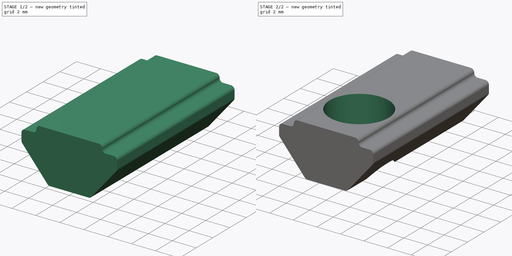
[diagram: build sequence overview — one tinted view per stage of 2, left to right]
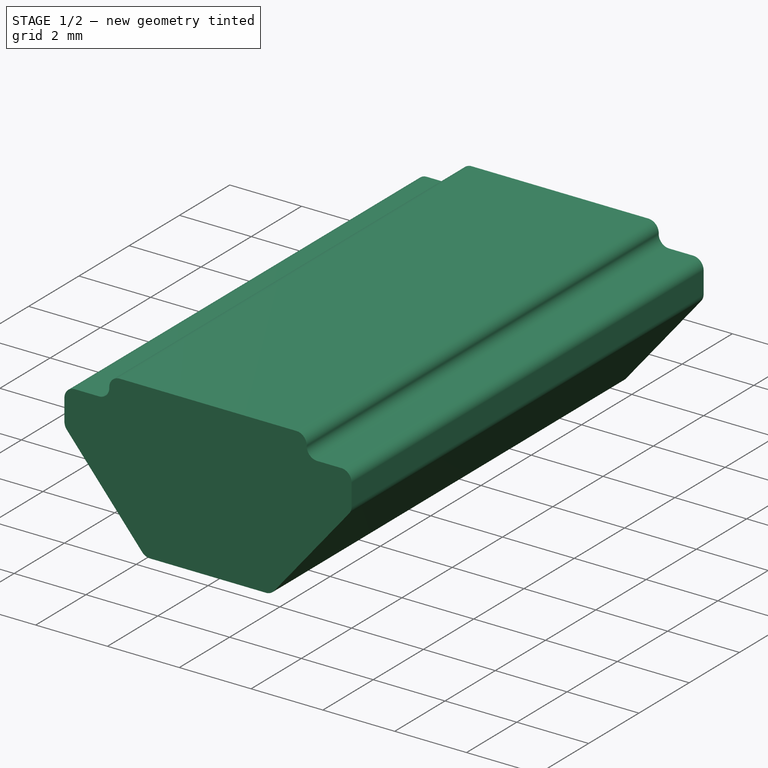
[diagram: stage 1 of 2 — iso view after this stage's code; geometry added in this stage tinted green]
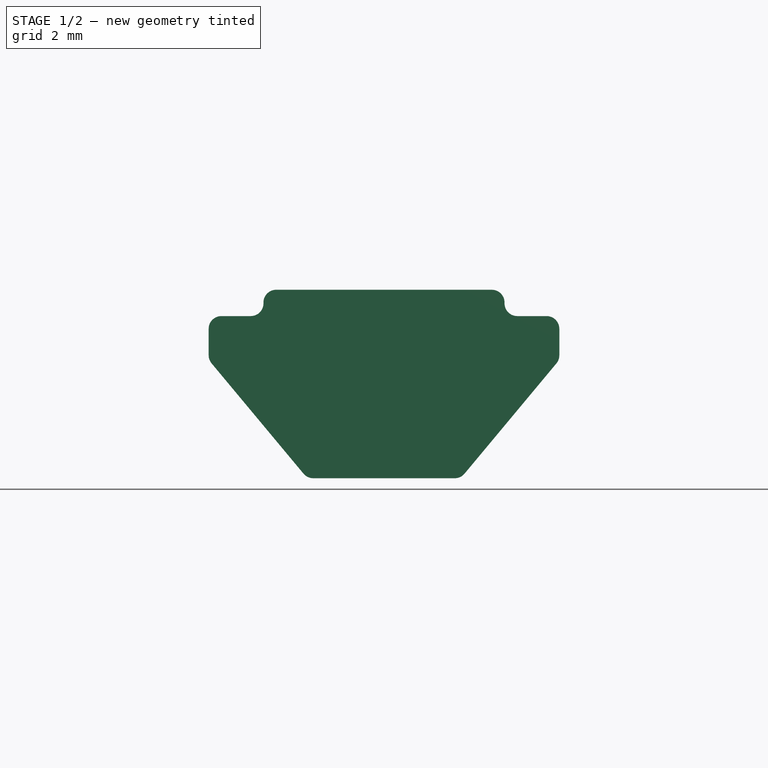
[diagram: stage 1 of 2 — front view after this stage's code; geometry added in this stage tinted green]
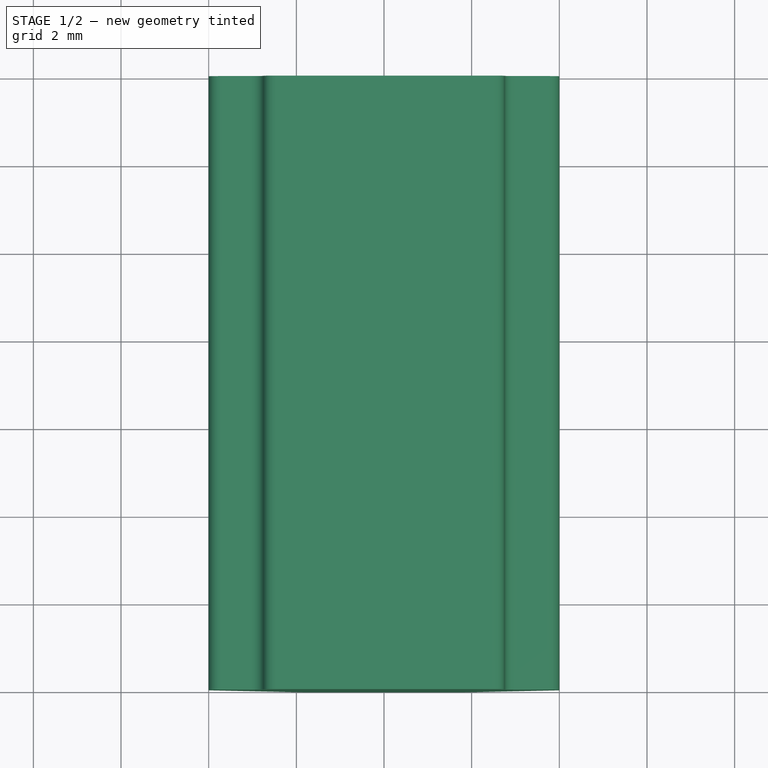
[diagram: stage 1 of 2 — top view after this stage's code; geometry added in this stage tinted green]
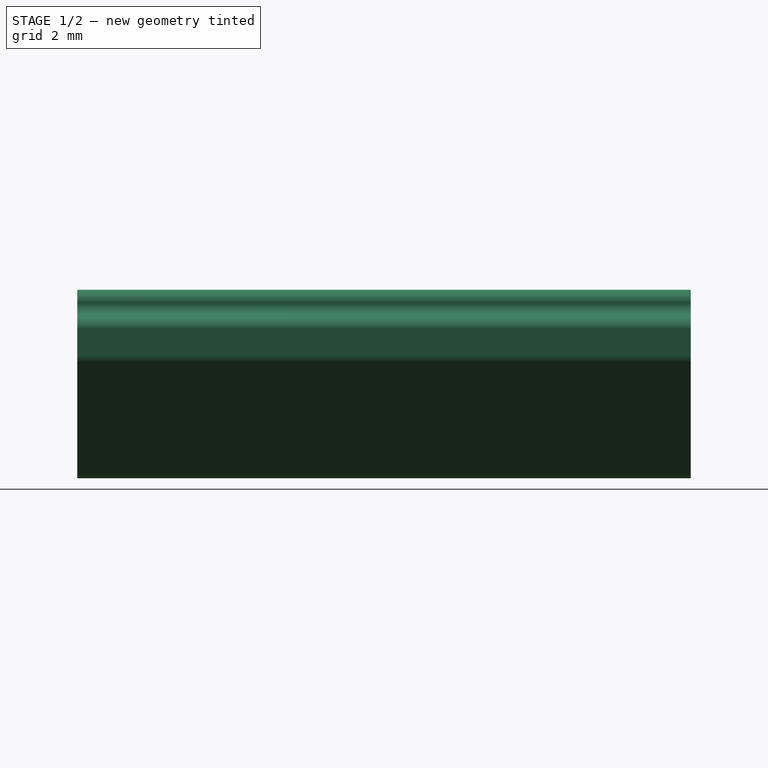
[diagram: stage 1 of 2 — right view after this stage's code; geometry added in this stage tinted green]
FCSTD DOCUMENT  (FreeCAD 0.19R24267 +99 (Git))
Label: Ball spring rail nut M5 representation
License: All rights reserved
LicenseURL: http://en.wikipedia.org/wiki/All_rights_reserved
objects: Sketcher::SketchObject×2, PartDesign::Pad×1, PartDesign::Fillet×1, PartDesign::Pocket×1, PartDesign::AdditiveSphere×1, PartDesign::Body×1
note: 11 computed .brp shape members not serialized (recipe doc carries the construction recipe); baked Part::Feature solids carry a one-line shape summary decoded from their .brp

FEATURE [Sketcher::SketchObject] Sketch
  FullyConstrained = true
  MapMode = 5
  Placement = pos=(0,0,0) rot=(1,0,0;1.5708rad)
  Support = -> [XZ_Plane]
  sketch-geometry (10):
    g0: LineSegment StartX=-2.75 StartY=0 StartZ=0 EndX=2.75 EndY=0 EndZ=0
    g1: LineSegment StartX=-2.75 StartY=0 StartZ=0 EndX=-2.75 EndY=-0.6 EndZ=0
    g2: LineSegment StartX=2.75 StartY=0 StartZ=0 EndX=2.75 EndY=-0.6 EndZ=0
    g3: LineSegment StartX=2.75 StartY=-0.6 StartZ=0 EndX=4 EndY=-0.6 EndZ=0
    g4: LineSegment StartX=-2.75 StartY=-0.6 StartZ=0 EndX=-4 EndY=-0.6 EndZ=0
    g5: LineSegment StartX=-4 StartY=-0.6 StartZ=0 EndX=-4 EndY=-1.6 EndZ=0
    g6: LineSegment StartX=4 StartY=-0.6 StartZ=0 EndX=4 EndY=-1.6 EndZ=0
    g7: LineSegment StartX=4 StartY=-1.6 StartZ=0 EndX=1.75 EndY=-4.3 EndZ=0
    g8: LineSegment StartX=1.75 StartY=-4.3 StartZ=0 EndX=-1.75 EndY=-4.3 EndZ=0
    g9: LineSegment StartX=-1.75 StartY=-4.3 StartZ=0 EndX=-4 EndY=-1.6 EndZ=0
  constraints (27):
    c: PointOnObject(g0,g-1)
    c: PointOnObject(g0,g-1)
    c: Coincident(g1,g0)
    c: Coincident(g2,g0)
    c: Coincident(g3,g2)
    c: Coincident(g4,g1)
    c: Coincident(g5,g4)
    c: Coincident(g6,g3)
    c: Coincident(g7,g6)
    c: Coincident(g8,g7)
    c: Coincident(g9,g8)
    c: Coincident(g9,g5)
    c: Symmetric(g1,g2,g-2)
    c: Symmetric(g5,g6,g-2)
    c: Horizontal(g4)
    c: Horizontal(g3)
    c: Vertical(g5)
    c: Vertical(g6)
    c: Vertical(g2)
    c: Vertical(g1)
    c: Symmetric(g8,g7,g-2)
    c: DistanceX(g0,g0) = 5.5
    c: DistanceX(g4,g3) = 8
    c: DistanceY(g2,g0) = 0.6
    c: DistanceY(g7,g0) = 4.3
    c: DistanceY(g5,g5) = 1
    c: DistanceX(g8,g8) = 3.5
FEATURE [PartDesign::Pad] Pad
  Direction = (1,1,1)
  Length = 14
  Length2 = 100
  Placement = pos=(0,0,0) rot=(1,0,0;1.5708rad)
  Profile = -> Sketch
  Type = 0
FEATURE [PartDesign::Fillet] Fillet
  Base = -> Pad [Edge14,Edge11,Edge8,Edge17,Edge20,Edge23,Edge5,Edge2,Edge26,Edge1]
  BaseFeature = -> Pad
  Placement = pos=(0,0,0) rot=(1,0,0;1.5708rad)
  Radius = 0.29
  SupportTransform = false
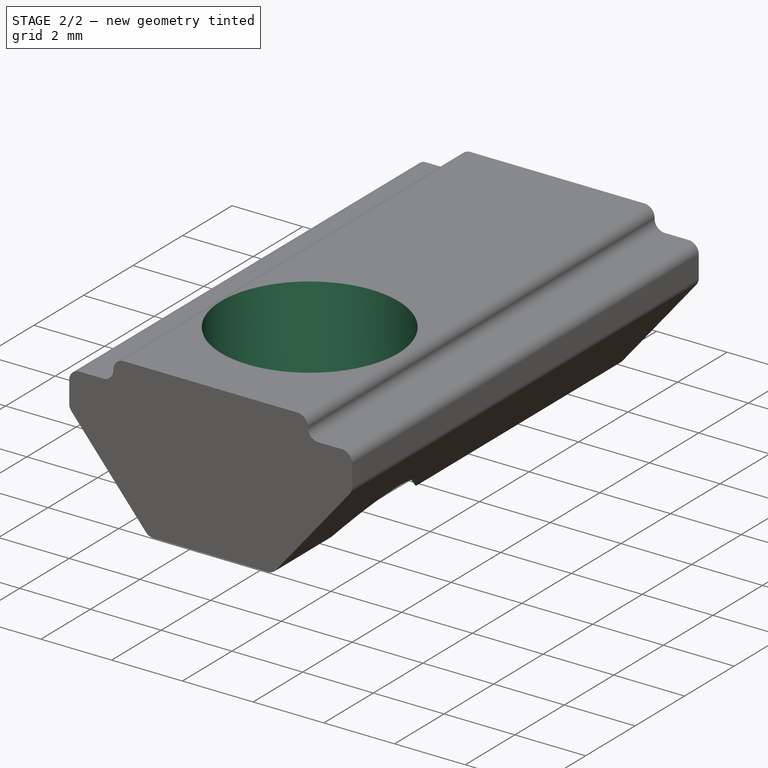
[diagram: stage 2 of 2 — iso view after this stage's code; geometry added in this stage tinted green]
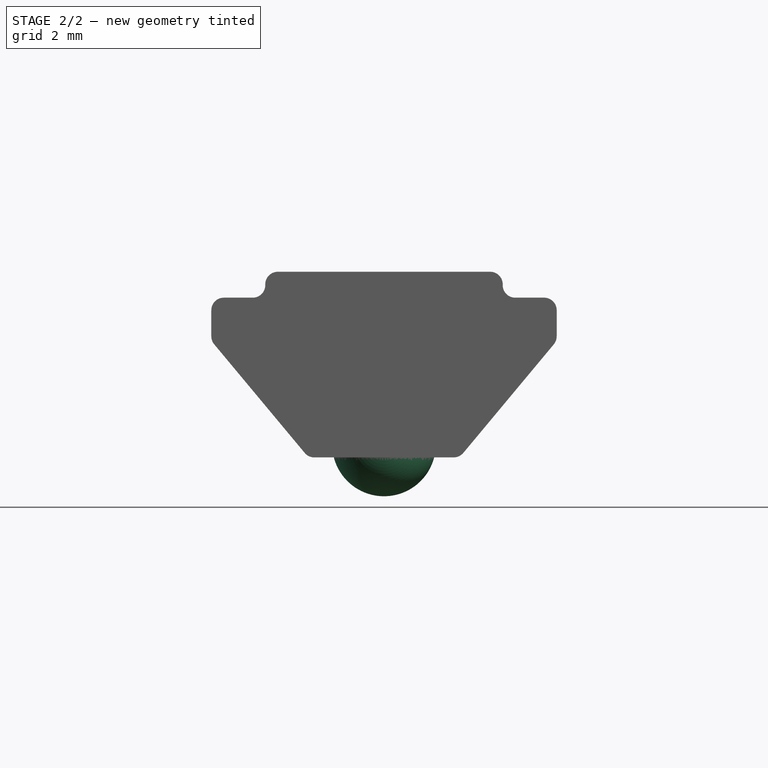
[diagram: stage 2 of 2 — front view after this stage's code; geometry added in this stage tinted green]
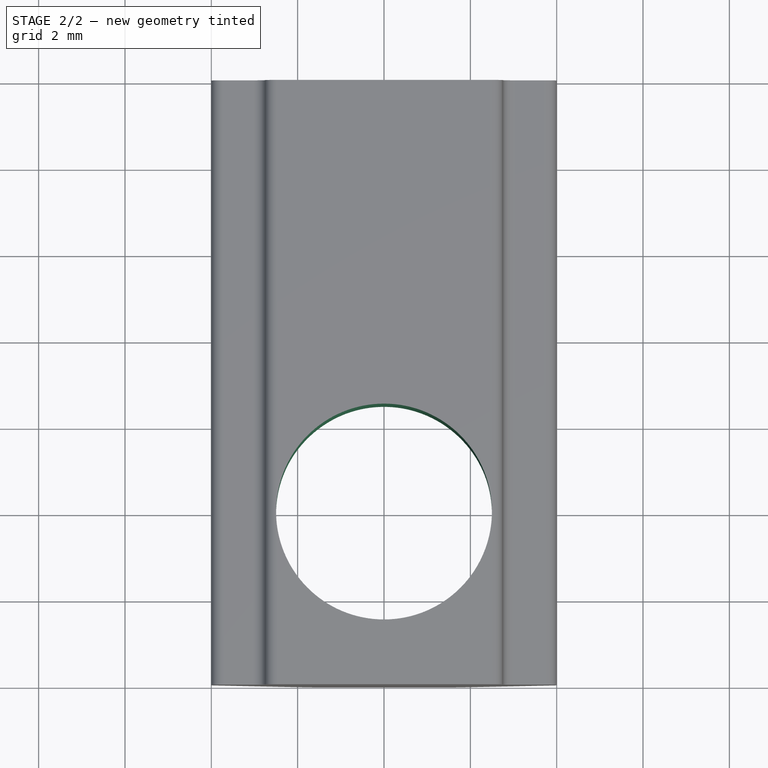
[diagram: stage 2 of 2 — top view after this stage's code; geometry added in this stage tinted green]
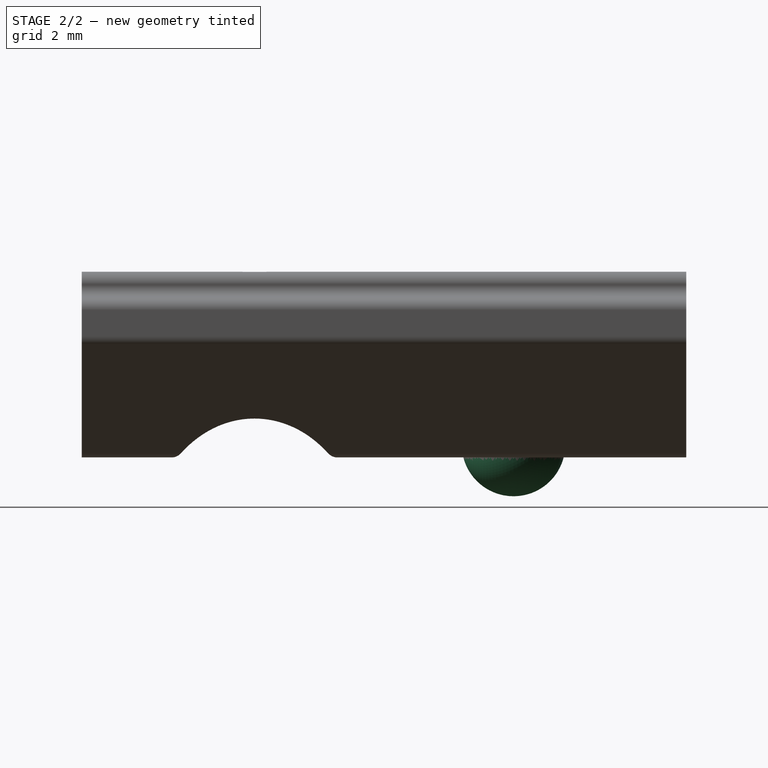
[diagram: stage 2 of 2 — right view after this stage's code; geometry added in this stage tinted green]
FEATURE [Sketcher::SketchObject] Sketch001
  FullyConstrained = true
  MapMode = 5
  Support = -> [XY_Plane]
  sketch-geometry (1):
    g0: Circle CenterX=0 CenterY=-10 CenterZ=0 NormalX=0 NormalY=0 NormalZ=1 AngleXU=0 Radius=2.5
  constraints (3):
    c: PointOnObject(g0,g-2)
    c: Diameter(g0) = 5
    c: DistanceY(g0,g-1) = 10
FEATURE [PartDesign::Pocket] Pocket
  BaseFeature = -> Fillet
  Length = 5
  Length2 = 100
  Placement = pos=(0,0,0) rot=(1,0,0;1.5708rad)
  Profile = -> Sketch001
  Type = 1
FEATURE [PartDesign::AdditiveSphere] Sphere
  Angle1 = -90
  Angle2 = 90
  Angle3 = 360
  AttacherType = Attacher::AttachEngine3D
  AttachmentOffset = pos=(0,4,-4) rot=(0,0,1;0rad)
  BaseFeature = -> Pocket
  MapMode = 5
  Placement = pos=(0,-4,-4) rot=(-1,0,0;1.5708rad)
  Radius = 1.2
  Support = -> [Pocket]
FEATURE [PartDesign::Body] Body
  Group = -> [Sketch,Pad,Fillet,Sketch001,Pocket,Sphere]
  Origin = -> Origin
  Tip = -> Sphere
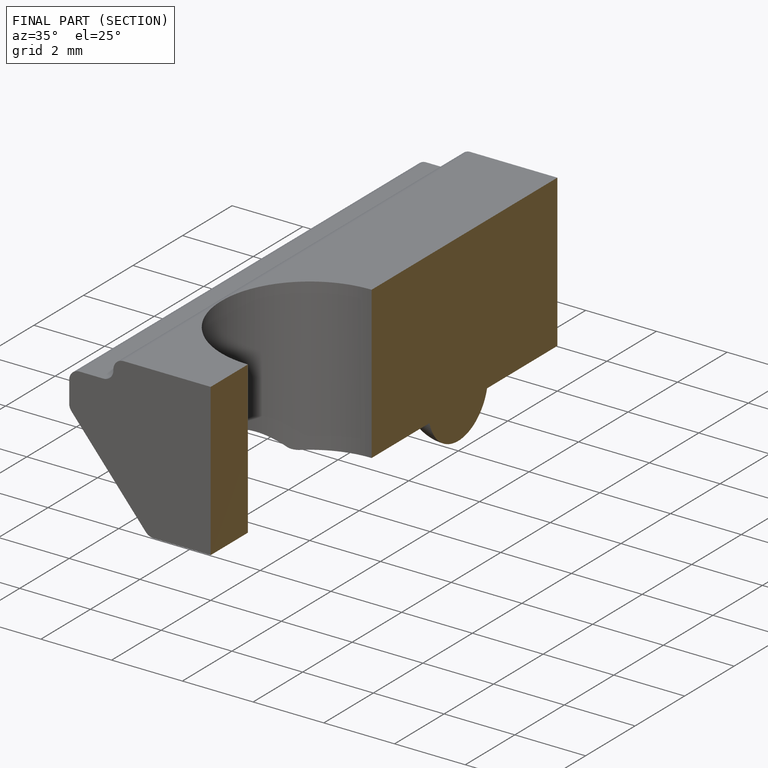
[diagram: finished part — half-section view (interior)]
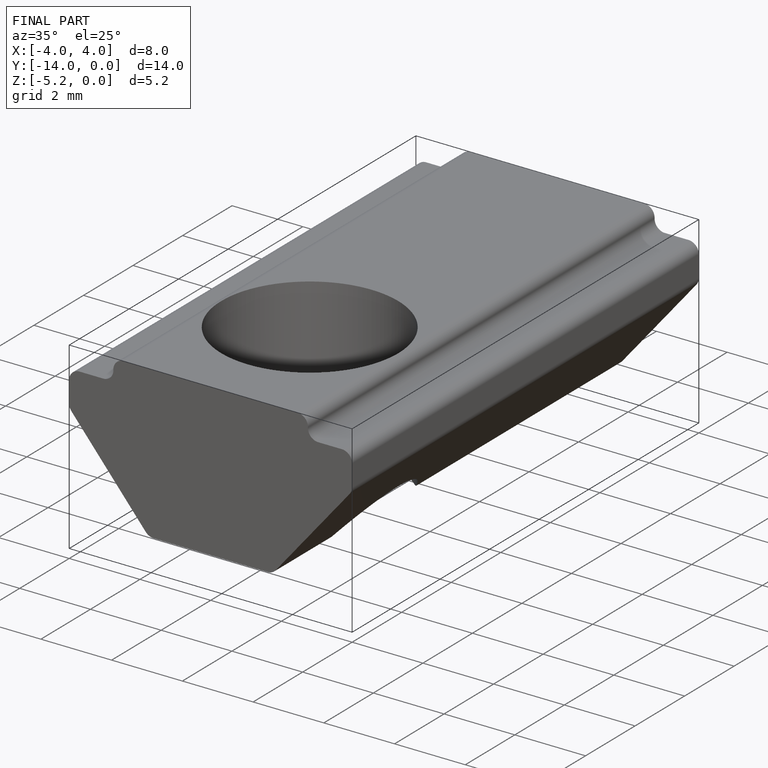
[diagram: finished part — iso view with bounding-box wireframe]
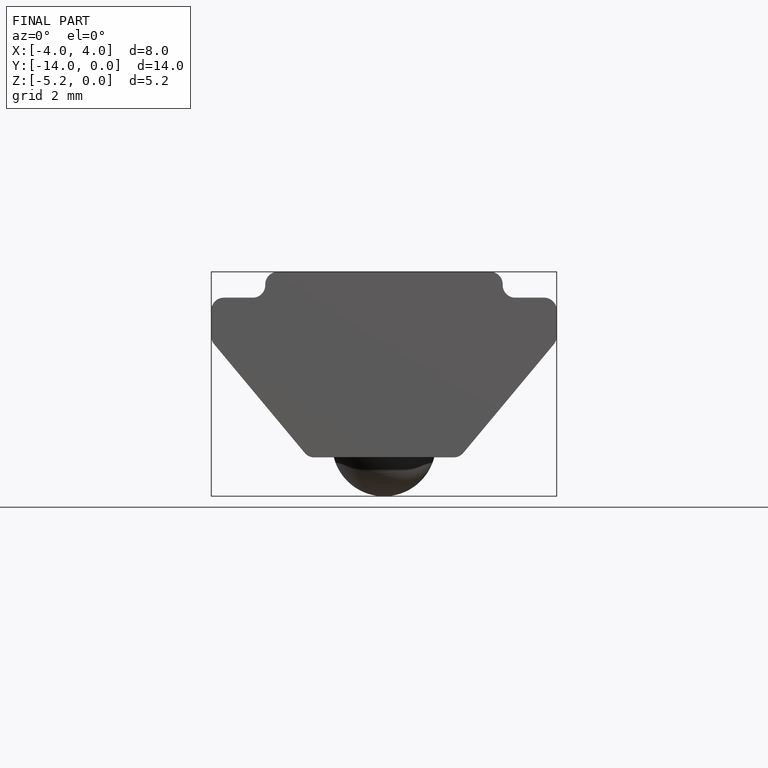
[diagram: finished part — front view with bounding-box wireframe]
